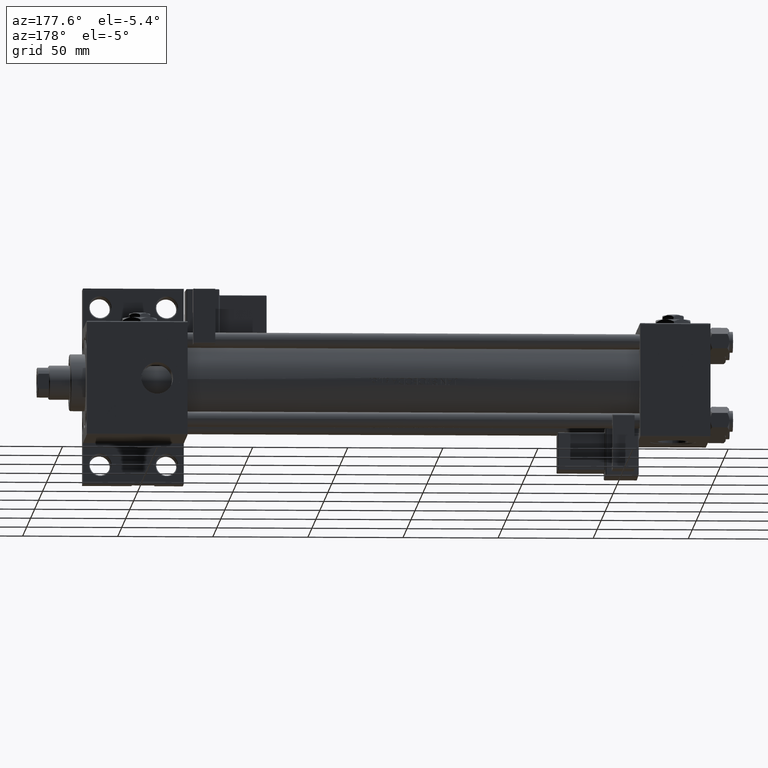
[diagram: clean part render]
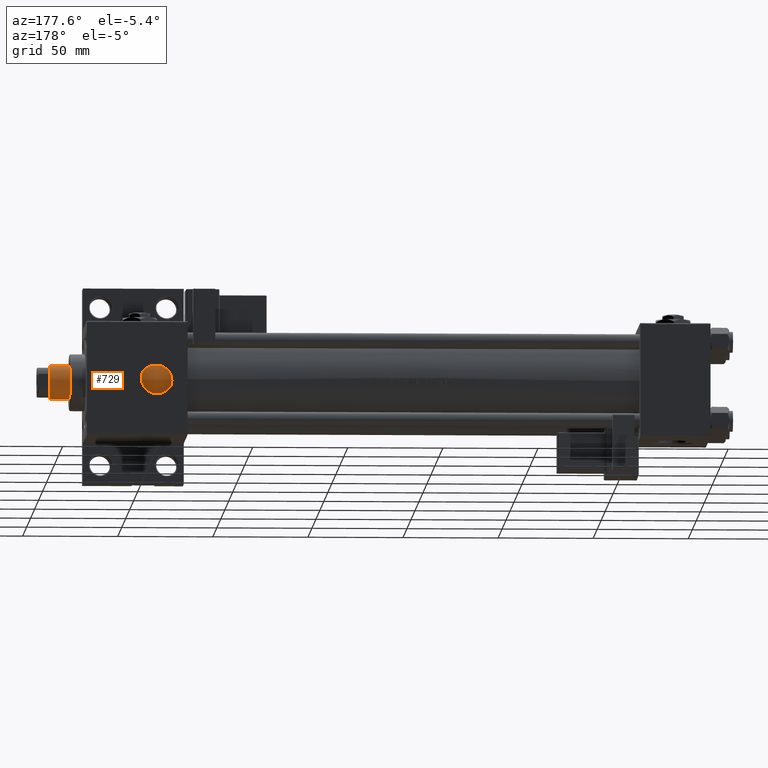
[diagram: same view with one face highlighted and labeled with its STEP entity id]
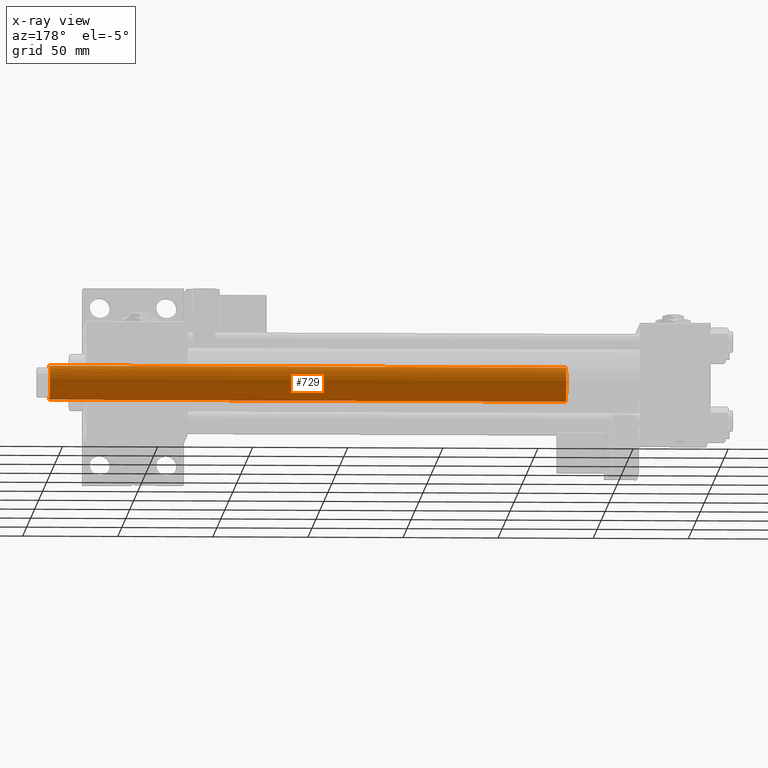
[diagram: x-ray of the same camera — body ghosted, the highlighted face saturated]
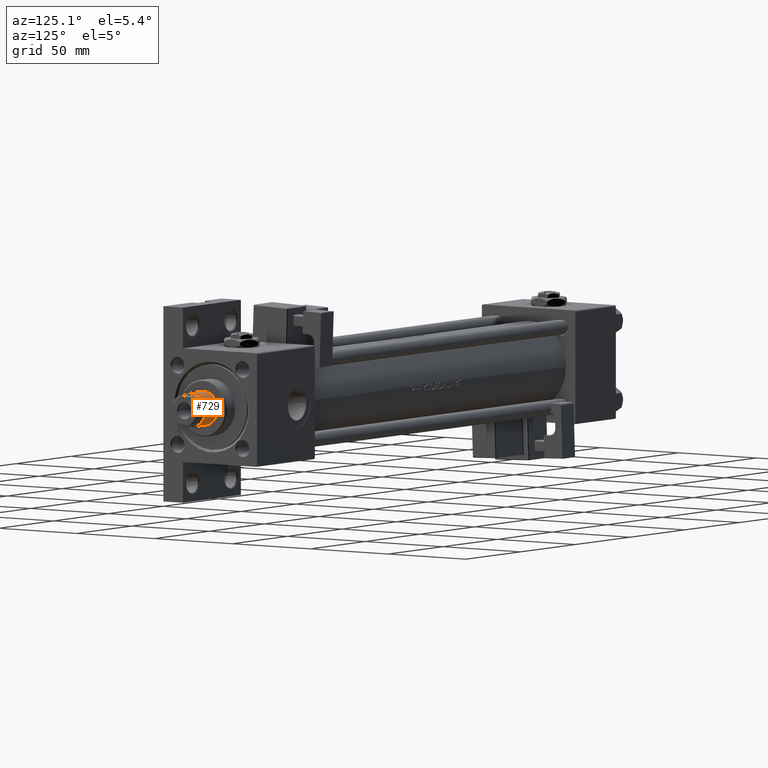
[diagram: same view with one face highlighted and labeled with its STEP entity id]
A machine part, auxiliary view. The second image highlights one B-rep face of the part: STEP entity #729.
The next image is the same camera in x-ray: the body ghosted, the highlighted face saturated — about 0% of this face is hidden behind the body in this view.
A second angle (auxiliary view) of the same face is appended — the face is thin or edge-on in the first view.
In plain terms, the highlighted cylindrical surface (edge-blend (fillet) strip) has radius 9 mm, axis along (-1, 0, 0).
Its self-contained STEP definition (entity closure, byte-faithful):
#729 = ADVANCED_FACE ( 'NONE', ( #29176 ), #32659, .T. ) ;
#1583 = EDGE_LOOP ( 'NONE', ( #5150, #3069, #16190, #17223 ) ) ;
#3069 = ORIENTED_EDGE ( 'NONE', *, *, #28320, .T. ) ;
#3215 = EDGE_CURVE ( 'NONE', #30888, #27250, #13947, .T. ) ;
#3658 = CARTESIAN_POINT ( 'NONE',  ( 9.000000000000000000, 1.102182119232617714E-15, 309.4999999999999432 ) ) ;
#4858 = DIRECTION ( 'NONE',  ( 1.000000000000000000, 0.000000000000000000, 0.000000000000000000 ) ) ;
#5150 = ORIENTED_EDGE ( 'NONE', *, *, #18869, .F. ) ;
#6143 = DIRECTION ( 'NONE',  ( -0.000000000000000000, -0.000000000000000000, -1.000000000000000000 ) ) ;
#6495 = AXIS2_PLACEMENT_3D ( 'NONE', #20361, #36672, #52993 ) ;
#7934 = VERTEX_POINT ( 'NONE', #3658 ) ;
#8990 = AXIS2_PLACEMENT_3D ( 'NONE', #19332, #15831, #32698 ) ;
#12481 = VECTOR ( 'NONE', #6143, 1000.000000000000000 ) ;
#13947 = LINE ( 'NONE', #18510, #12481 ) ;
#15831 = DIRECTION ( 'NONE',  ( 0.000000000000000000, 0.000000000000000000, 1.000000000000000000 ) ) ;
#16190 = ORIENTED_EDGE ( 'NONE', *, *, #3215, .T. ) ;
#16261 = VERTEX_POINT ( 'NONE', #29195 ) ;
#16611 = LINE ( 'NONE', #40968, #33857 ) ;
#17223 = ORIENTED_EDGE ( 'NONE', *, *, #18184, .T. ) ;
#18184 = EDGE_CURVE ( 'NONE', #27250, #16261, #48340, .T. ) ;
#18510 = CARTESIAN_POINT ( 'NONE',  ( -9.000000000000000000, 0.000000000000000000, 310.0000000000000000 ) ) ;
#18869 = EDGE_CURVE ( 'NONE', #7934, #16261, #16611, .T. ) ;
#19332 = CARTESIAN_POINT ( 'NONE',  ( 0.000000000000000000, 0.000000000000000000, 38.00000000000000000 ) ) ;
#20191 = DIRECTION ( 'NONE',  ( 0.000000000000000000, 0.000000000000000000, -1.000000000000000000 ) ) ;
#20361 = CARTESIAN_POINT ( 'NONE',  ( 0.000000000000000000, 0.000000000000000000, 310.0000000000000000 ) ) ;
#24634 = CARTESIAN_POINT ( 'NONE',  ( -9.000000000000000000, 0.000000000000000000, 309.4999999999999432 ) ) ;
#27250 = VERTEX_POINT ( 'NONE', #31336 ) ;
#28320 = EDGE_CURVE ( 'NONE', #7934, #30888, #35598, .T. ) ;
#29176 = FACE_OUTER_BOUND ( 'NONE', #1583, .T. ) ;
#29195 = CARTESIAN_POINT ( 'NONE',  ( 9.000000000000000000, 1.102182119232617714E-15, 38.00000000000000000 ) ) ;
#30888 = VERTEX_POINT ( 'NONE', #24634 ) ;
#31336 = CARTESIAN_POINT ( 'NONE',  ( -9.000000000000000000, 0.000000000000000000, 38.00000000000000000 ) ) ;
#32659 = CYLINDRICAL_SURFACE ( 'NONE', #6495, 9.000000000000000000 ) ;
#32698 = DIRECTION ( 'NONE',  ( 1.000000000000000000, 0.000000000000000000, 0.000000000000000000 ) ) ;
#33020 = CARTESIAN_POINT ( 'NONE',  ( 0.000000000000000000, 0.000000000000000000, 309.4999999999999432 ) ) ;
#33214 = DIRECTION ( 'NONE',  ( -0.000000000000000000, -0.000000000000000000, -1.000000000000000000 ) ) ;
#33857 = VECTOR ( 'NONE', #33214, 1000.000000000000000 ) ;
#35598 = CIRCLE ( 'NONE', #40710, 9.000000000000000000 ) ;
#36672 = DIRECTION ( 'NONE',  ( -0.000000000000000000, -0.000000000000000000, -1.000000000000000000 ) ) ;
#40710 = AXIS2_PLACEMENT_3D ( 'NONE', #33020, #20191, #4858 ) ;
#40968 = CARTESIAN_POINT ( 'NONE',  ( 9.000000000000000000, 1.102182119232617714E-15, 310.0000000000000000 ) ) ;
#48340 = CIRCLE ( 'NONE', #8990, 9.000000000000000000 ) ;
#52993 = DIRECTION ( 'NONE',  ( -1.000000000000000000, 0.000000000000000000, 0.000000000000000000 ) ) ;